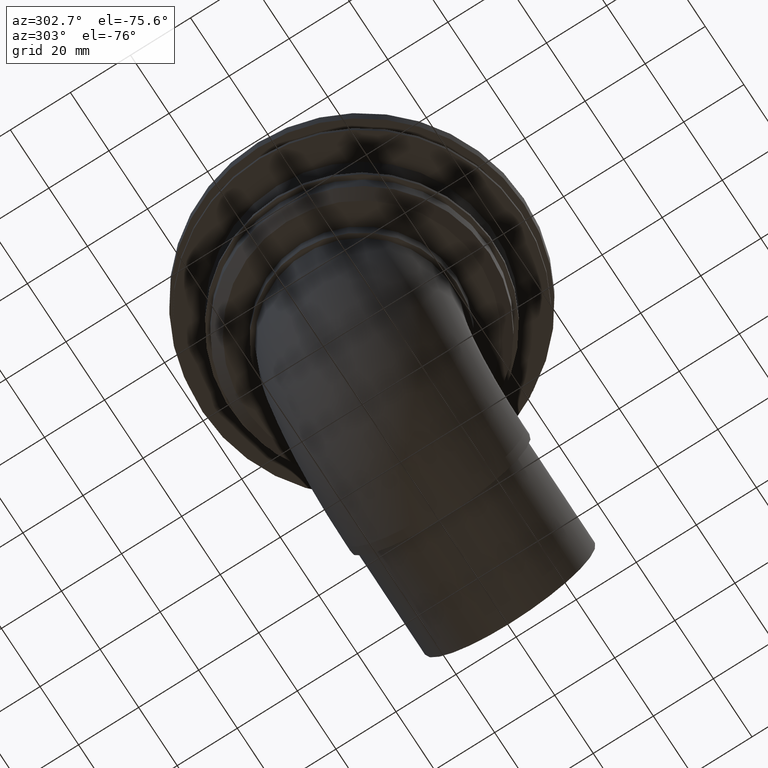
[diagram: clean part render]
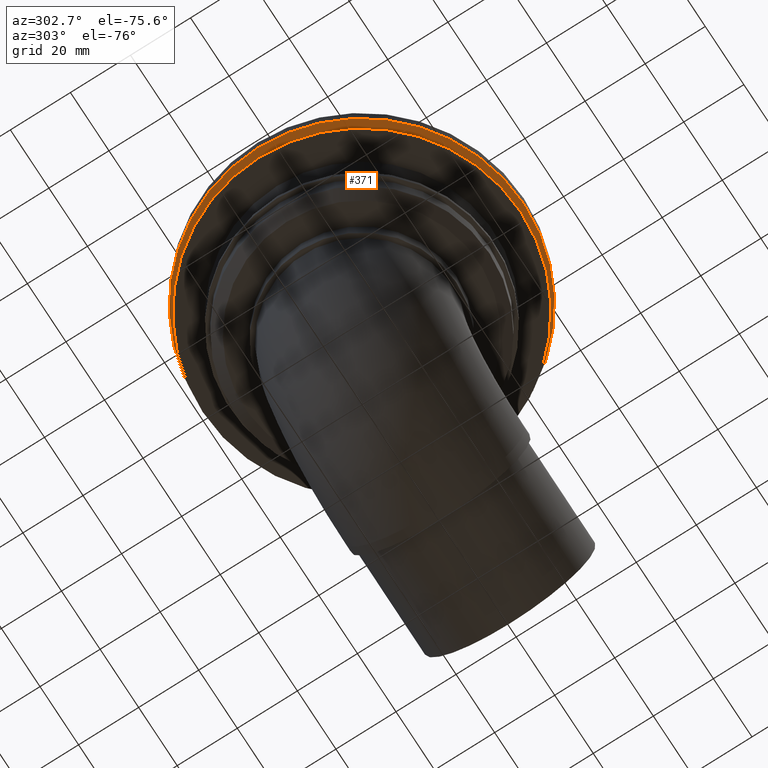
[diagram: same view with one face highlighted and labeled with its STEP entity id]
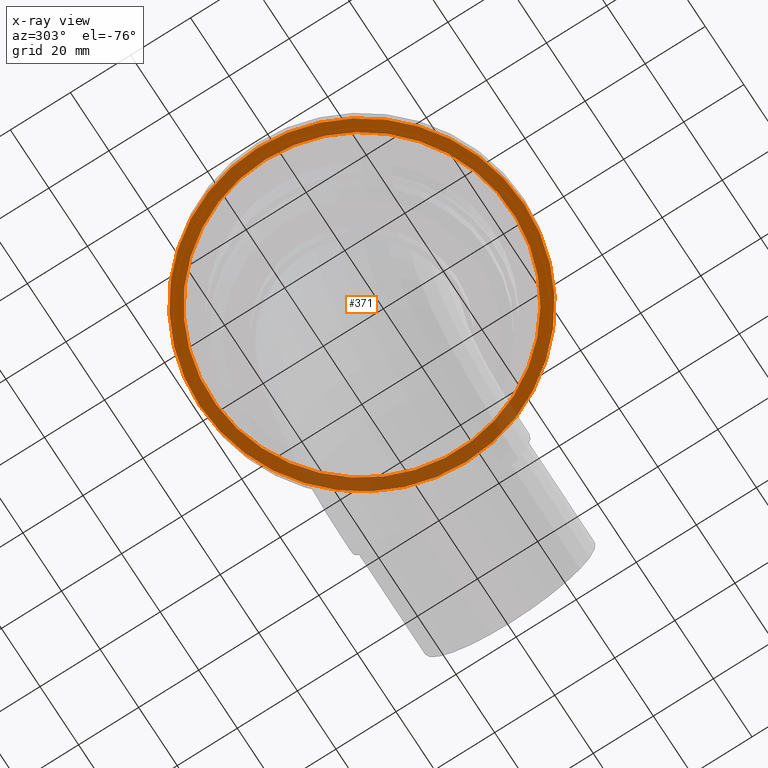
[diagram: x-ray of the same camera — body ghosted, the highlighted face saturated]
A machine part, auxiliary view. The second image highlights one B-rep face of the part: STEP entity #371.
The next image is the same camera in x-ray: the body ghosted, the highlighted face saturated — about 20% of this face is hidden behind the body in this view.
In plain terms, the highlighted planar face has unit normal (0, 0, -1).
Its self-contained STEP definition (entity closure, byte-faithful):
#44=ORIENTED_EDGE('',*,*,#114,.T.);
#45=ORIENTED_EDGE('',*,*,#115,.F.);
#114=EDGE_CURVE('',#149,#149,#184,.T.);
#115=EDGE_CURVE('',#150,#150,#185,.T.);
#149=VERTEX_POINT('',#638);
#150=VERTEX_POINT('',#640);
#184=CIRCLE('',#422,54.);
#185=CIRCLE('',#423,50.);
#219=EDGE_LOOP('',(#44));
#220=EDGE_LOOP('',(#45));
#289=FACE_BOUND('',#219,.T.);
#290=FACE_BOUND('',#220,.T.);
#358=PLANE('',#421);
#371=ADVANCED_FACE('',(#289,#290),#358,.T.);
#421=AXIS2_PLACEMENT_3D('',#636,#496,#497);
#422=AXIS2_PLACEMENT_3D('',#637,#498,#499);
#423=AXIS2_PLACEMENT_3D('',#639,#500,#501);
#496=DIRECTION('',(0.,0.,-1.));
#497=DIRECTION('',(-1.,0.,0.));
#498=DIRECTION('',(0.,0.,-1.));
#499=DIRECTION('',(-1.,0.,0.));
#500=DIRECTION('',(0.,0.,-1.));
#501=DIRECTION('',(-1.,0.,0.));
#636=CARTESIAN_POINT('',(-50.,0.,-6.00000000000001));
#637=CARTESIAN_POINT('',(0.,0.,-6.00000000000001));
#638=CARTESIAN_POINT('',(-54.,0.,-6.00000000000001));
#639=CARTESIAN_POINT('',(0.,0.,-6.00000000000001));
#640=CARTESIAN_POINT('',(-50.,0.,-6.00000000000001));